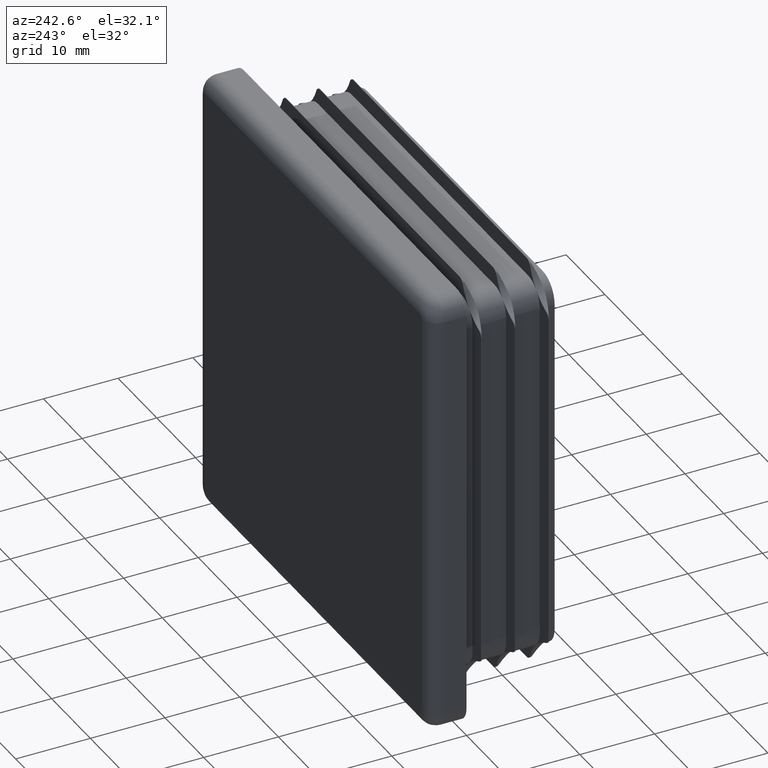
[diagram: clean part render]
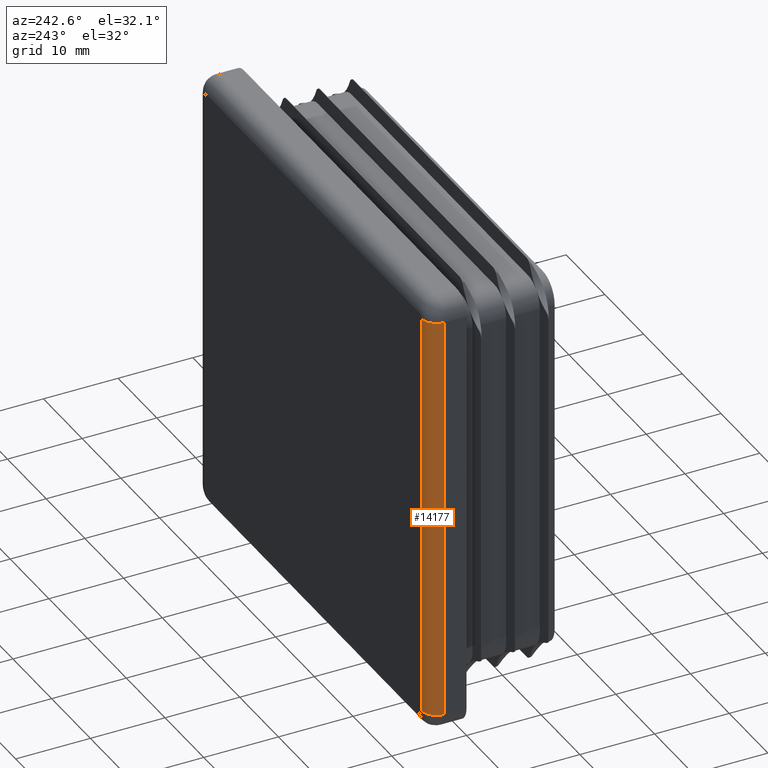
[diagram: same view with one face highlighted and labeled with its STEP entity id]
A machine part, auxiliary view. The second image highlights one B-rep face of the part: STEP entity #14177.
In plain terms, the highlighted cylindrical surface (edge-blend (fillet) strip) has radius 2 mm, axis along (-0, 0, -1).
Its self-contained STEP definition (entity closure, byte-faithful):
#36 = CARTESIAN_POINT ( 'NONE',  ( -29.99999999999999289, 3.000000000000000000, 27.49999999999999645 ) ) ;
#840 = ORIENTED_EDGE ( 'NONE', *, *, #2864, .F. ) ;
#1258 = VERTEX_POINT ( 'NONE', #36 ) ;
#1286 = ORIENTED_EDGE ( 'NONE', *, *, #21170, .F. ) ;
#1802 = CARTESIAN_POINT ( 'NONE',  ( -30.00000000000000000, 3.000000000000000000, -27.50000000000000000 ) ) ;
#2210 = ORIENTED_EDGE ( 'NONE', *, *, #15015, .T. ) ;
#2552 = EDGE_CURVE ( 'NONE', #6099, #1258, #21969, .T. ) ;
#2864 = EDGE_CURVE ( 'NONE', #9580, #6099, #8701, .T. ) ;
#2991 = CARTESIAN_POINT ( 'NONE',  ( -27.99999999999998934, 5.000000000000000000, 27.49999999999999645 ) ) ;
#3808 = CARTESIAN_POINT ( 'NONE',  ( -28.00000000000000000, 5.000000000000000000, -27.50000000000000000 ) ) ;
#4434 = LINE ( 'NONE', #1802, #16038 ) ;
#4541 = DIRECTION ( 'NONE',  ( 0.000000000000000000, -0.000000000000000000, 1.000000000000000000 ) ) ;
#4827 = DIRECTION ( 'NONE',  ( -1.734723475976805319E-15, 0.000000000000000000, 1.000000000000000000 ) ) ;
#5541 = EDGE_LOOP ( 'NONE', ( #2210, #1286, #8963, #840 ) ) ;
#6092 = DIRECTION ( 'NONE',  ( -1.156482317317871478E-16, 0.000000000000000000, -1.000000000000000000 ) ) ;
#6099 = VERTEX_POINT ( 'NONE', #13071 ) ;
#6249 = DIRECTION ( 'NONE',  ( -1.000000000000000000, 0.000000000000000000, 1.156482317317872218E-16 ) ) ;
#6847 = DIRECTION ( 'NONE',  ( 1.000000000000000000, 0.000000000000000000, 1.734723475976805517E-15 ) ) ;
#8701 = LINE ( 'NONE', #2991, #20592 ) ;
#8963 = ORIENTED_EDGE ( 'NONE', *, *, #2552, .F. ) ;
#9580 = VERTEX_POINT ( 'NONE', #3808 ) ;
#9906 = VERTEX_POINT ( 'NONE', #14042 ) ;
#11583 = CARTESIAN_POINT ( 'NONE',  ( -28.00000000000000000, 3.000000000000000000, -27.50000000000000000 ) ) ;
#11776 = FACE_OUTER_BOUND ( 'NONE', #5541, .T. ) ;
#11816 = DIRECTION ( 'NONE',  ( 1.156482317317871478E-16, -0.000000000000000000, 1.000000000000000000 ) ) ;
#12111 = AXIS2_PLACEMENT_3D ( 'NONE', #17492, #4827, #6847 ) ;
#13071 = CARTESIAN_POINT ( 'NONE',  ( -27.99999999999998934, 5.000000000000000000, 27.50000000000000000 ) ) ;
#13962 = CIRCLE ( 'NONE', #16968, 1.999999999999998224 ) ;
#14042 = CARTESIAN_POINT ( 'NONE',  ( -30.00000000000000000, 3.000000000000000000, -27.50000000000000000 ) ) ;
#14143 = AXIS2_PLACEMENT_3D ( 'NONE', #16744, #6092, #6249 ) ;
#14177 = ADVANCED_FACE ( 'NONE', ( #11776 ), #17041, .T. ) ;
#15015 = EDGE_CURVE ( 'NONE', #9580, #9906, #13962, .T. ) ;
#15302 = DIRECTION ( 'NONE',  ( 1.000000000000000000, 0.000000000000000000, 0.000000000000000000 ) ) ;
#16038 = VECTOR ( 'NONE', #21364, 1000.000000000000000 ) ;
#16744 = CARTESIAN_POINT ( 'NONE',  ( -27.99999999999999289, 3.000000000000000000, 3.238150488490039647E-15 ) ) ;
#16968 = AXIS2_PLACEMENT_3D ( 'NONE', #11583, #4541, #15302 ) ;
#17041 = CYLINDRICAL_SURFACE ( 'NONE', #14143, 1.999999999999998224 ) ;
#17492 = CARTESIAN_POINT ( 'NONE',  ( -27.99999999999998934, 3.000000000000000000, 27.50000000000000000 ) ) ;
#20592 = VECTOR ( 'NONE', #11816, 1000.000000000000000 ) ;
#21170 = EDGE_CURVE ( 'NONE', #1258, #9906, #4434, .T. ) ;
#21364 = DIRECTION ( 'NONE',  ( -1.156482317317871478E-16, -0.000000000000000000, -1.000000000000000000 ) ) ;
#21969 = CIRCLE ( 'NONE', #12111, 2.000000000000001776 ) ;